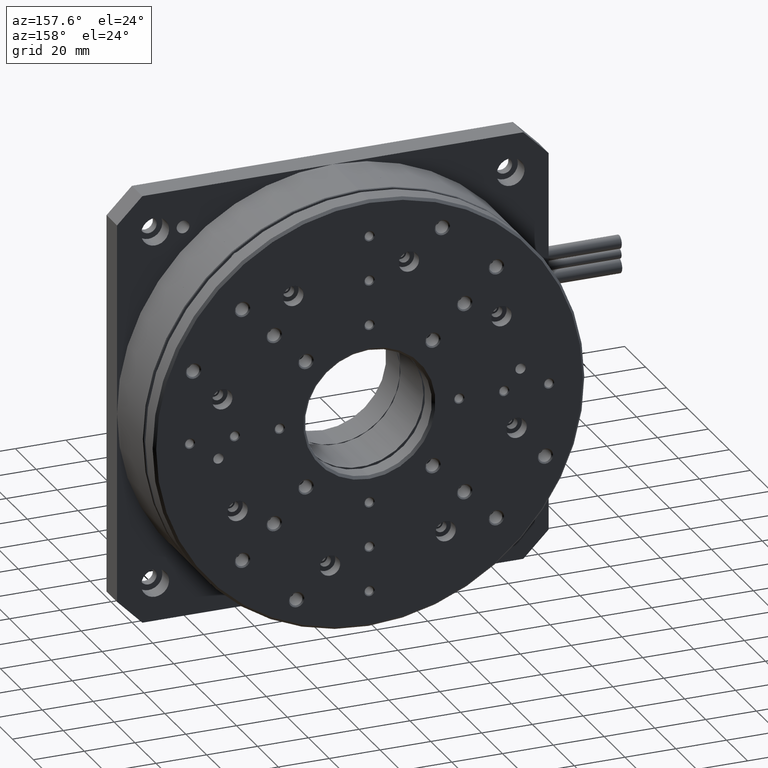
[diagram: clean part render]
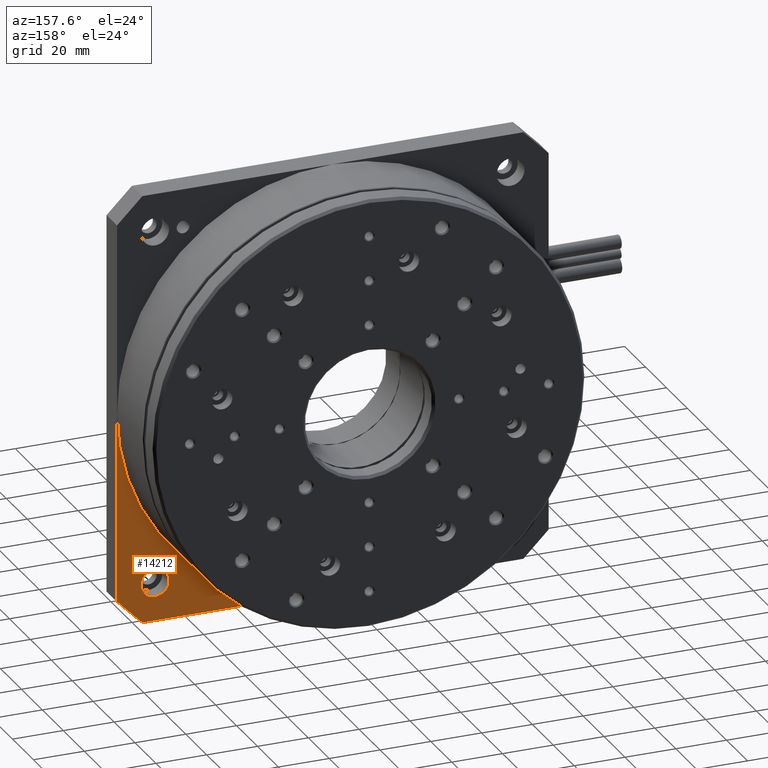
[diagram: same view with one face highlighted and labeled with its STEP entity id]
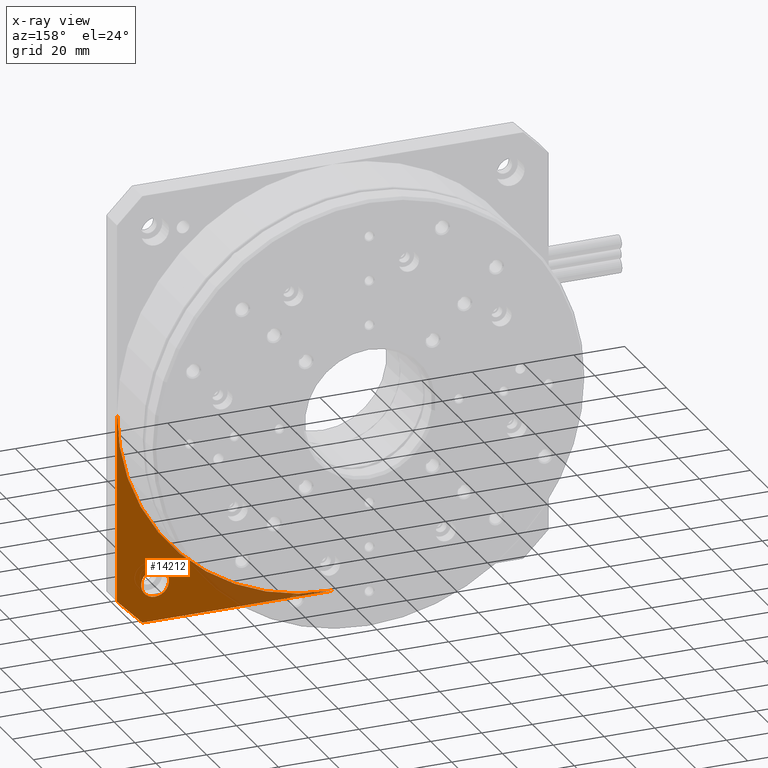
[diagram: x-ray of the same camera — body ghosted, the highlighted face saturated]
A machine part, auxiliary view. The second image highlights one B-rep face of the part: STEP entity #14212.
The next image is the same camera in x-ray: the body ghosted, the highlighted face saturated — about 14% of this face is hidden behind the body in this view.
In plain terms, the highlighted planar face has unit normal (0, -1, 0).
Its self-contained STEP definition (entity closure, byte-faithful):
#744 = CARTESIAN_POINT ( 'NONE',  ( 170.0000000000000300, 10.00000000000000000, 10.00000000000009200 ) ) ;
#789 = EDGE_LOOP ( 'NONE', ( #15224, #15536 ) ) ;
#879 = VERTEX_POINT ( 'NONE', #20501 ) ;
#1077 = CARTESIAN_POINT ( 'NONE',  ( 155.0000000000000000, 10.00000000000000000, 14.99999999999993100 ) ) ;
#1496 = VERTEX_POINT ( 'NONE', #19283 ) ;
#2363 = LINE ( 'NONE', #14764, #20856 ) ;
#2761 = DIRECTION ( 'NONE',  ( 0.0000000000000000000, 1.000000000000000000, 0.0000000000000000000 ) ) ;
#3372 = VECTOR ( 'NONE', #5111, 1000.000000000000000 ) ;
#3426 = VECTOR ( 'NONE', #10936, 1000.000000000000000 ) ;
#3457 = DIRECTION ( 'NONE',  ( 0.0000000000000000000, -0.0000000000000000000, -1.000000000000000000 ) ) ;
#3537 = PLANE ( 'NONE',  #5796 ) ;
#3566 = FACE_OUTER_BOUND ( 'NONE', #7272, .T. ) ;
#4031 = ORIENTED_EDGE ( 'NONE', *, *, #21400, .T. ) ;
#4046 = DIRECTION ( 'NONE',  ( -0.7071067811865474600, -0.0000000000000000000, -0.7071067811865474600 ) ) ;
#4119 = VERTEX_POINT ( 'NONE', #18359 ) ;
#4286 = EDGE_CURVE ( 'NONE', #4119, #879, #22946, .T. ) ;
#4504 = DIRECTION ( 'NONE',  ( 0.0000000000000000000, 0.0000000000000000000, 1.000000000000000000 ) ) ;
#4761 = CIRCLE ( 'NONE', #7875, 5.500000000000005300 ) ;
#5111 = DIRECTION ( 'NONE',  ( -1.000000000000000000, -0.0000000000000000000, 0.0000000000000000000 ) ) ;
#5169 = DIRECTION ( 'NONE',  ( -0.0000000000000000000, 1.000000000000000000, -0.0000000000000000000 ) ) ;
#5796 = AXIS2_PLACEMENT_3D ( 'NONE', #14331, #17840, #3457 ) ;
#5834 = VERTEX_POINT ( 'NONE', #22503 ) ;
#6194 = DIRECTION ( 'NONE',  ( 0.0000000000000000000, 0.0000000000000000000, -1.000000000000000000 ) ) ;
#7272 = EDGE_LOOP ( 'NONE', ( #13448, #4031, #16148, #12987 ) ) ;
#7875 = AXIS2_PLACEMENT_3D ( 'NONE', #1077, #15235, #4504 ) ;
#8263 = CARTESIAN_POINT ( 'NONE',  ( 85.00000000000000000, 9.999999999999998200, 85.00000000000000000 ) ) ;
#8515 = CARTESIAN_POINT ( 'NONE',  ( 159.9999999999999400, 10.00000000000000000, -2.775557561562891400E-014 ) ) ;
#9232 = CARTESIAN_POINT ( 'NONE',  ( 170.0000000000000000, 10.00000000000000000, 170.0000000000000000 ) ) ;
#9758 = EDGE_CURVE ( 'NONE', #1496, #5834, #19248, .T. ) ;
#10602 = VERTEX_POINT ( 'NONE', #744 ) ;
#10648 = EDGE_CURVE ( 'NONE', #10602, #13717, #2363, .T. ) ;
#10936 = DIRECTION ( 'NONE',  ( -0.0000000000000000000, -0.0000000000000000000, -1.000000000000000000 ) ) ;
#11058 = EDGE_CURVE ( 'NONE', #4119, #10602, #18272, .T. ) ;
#12166 = CARTESIAN_POINT ( 'NONE',  ( 0.0000000000000000000, 10.00000000000000000, 0.0000000000000000000 ) ) ;
#12987 = ORIENTED_EDGE ( 'NONE', *, *, #11058, .T. ) ;
#13448 = ORIENTED_EDGE ( 'NONE', *, *, #10648, .T. ) ;
#13717 = VERTEX_POINT ( 'NONE', #8515 ) ;
#14212 = ADVANCED_FACE ( 'NONE', ( #3566, #20665 ), #3537, .F. ) ;
#14219 = AXIS2_PLACEMENT_3D ( 'NONE', #15736, #5169, #21302 ) ;
#14331 = CARTESIAN_POINT ( 'NONE',  ( 0.0000000000000000000, 10.00000000000000000, 0.0000000000000000000 ) ) ;
#14764 = CARTESIAN_POINT ( 'NONE',  ( 159.9999999999999700, 10.00000000000000000, 0.0000000000000000000 ) ) ;
#15224 = ORIENTED_EDGE ( 'NONE', *, *, #17034, .F. ) ;
#15235 = DIRECTION ( 'NONE',  ( -0.0000000000000000000, 1.000000000000000000, -0.0000000000000000000 ) ) ;
#15536 = ORIENTED_EDGE ( 'NONE', *, *, #9758, .F. ) ;
#15736 = CARTESIAN_POINT ( 'NONE',  ( 155.0000000000000000, 10.00000000000000000, 14.99999999999993100 ) ) ;
#16148 = ORIENTED_EDGE ( 'NONE', *, *, #4286, .F. ) ;
#17034 = EDGE_CURVE ( 'NONE', #5834, #1496, #4761, .T. ) ;
#17840 = DIRECTION ( 'NONE',  ( 0.0000000000000000000, -1.000000000000000000, 0.0000000000000000000 ) ) ;
#18272 = LINE ( 'NONE', #9232, #3426 ) ;
#18359 = CARTESIAN_POINT ( 'NONE',  ( 170.0000000000000300, 9.999999999999998200, 85.00000000000000000 ) ) ;
#19248 = CIRCLE ( 'NONE', #14219, 5.500000000000005300 ) ;
#19283 = CARTESIAN_POINT ( 'NONE',  ( 155.0000000000000000, 10.00000000000000000, 9.499999999999925400 ) ) ;
#20501 = CARTESIAN_POINT ( 'NONE',  ( 85.00000000000000000, 9.999999999999998200, -2.775557561562891400E-014 ) ) ;
#20510 = AXIS2_PLACEMENT_3D ( 'NONE', #8263, #2761, #6194 ) ;
#20665 = FACE_BOUND ( 'NONE', #789, .T. ) ;
#20856 = VECTOR ( 'NONE', #4046, 1000.000000000000100 ) ;
#21302 = DIRECTION ( 'NONE',  ( 0.0000000000000000000, 0.0000000000000000000, 1.000000000000000000 ) ) ;
#21400 = EDGE_CURVE ( 'NONE', #13717, #879, #22416, .T. ) ;
#22416 = LINE ( 'NONE', #12166, #3372 ) ;
#22503 = CARTESIAN_POINT ( 'NONE',  ( 155.0000000000000000, 10.00000000000000000, 20.49999999999993600 ) ) ;
#22946 = CIRCLE ( 'NONE', #20510, 85.00000000000002800 ) ;